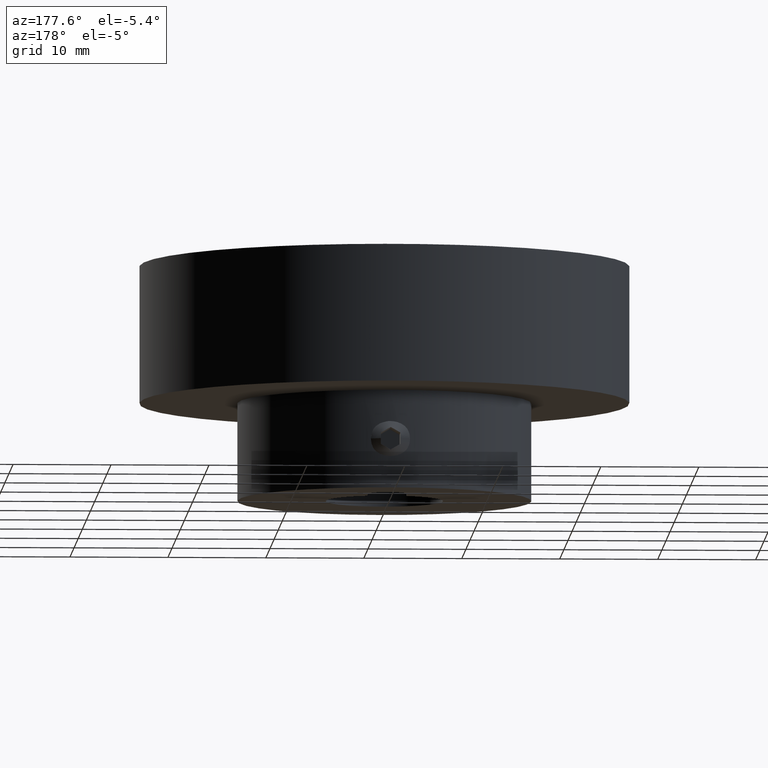
[diagram: clean part render]
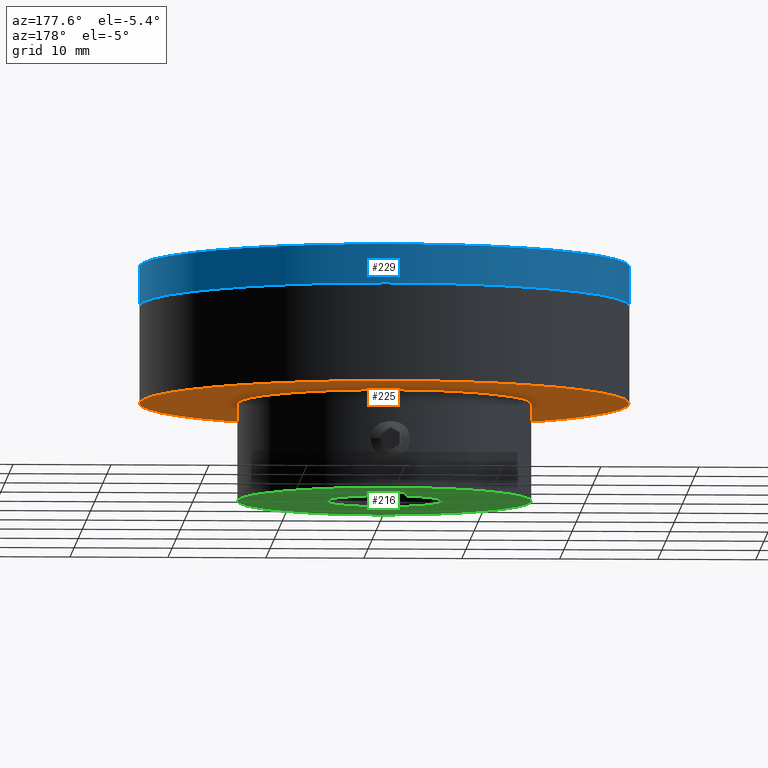
[diagram: same view with three faces highlighted in distinct colors, each labeled with its STEP entity id]
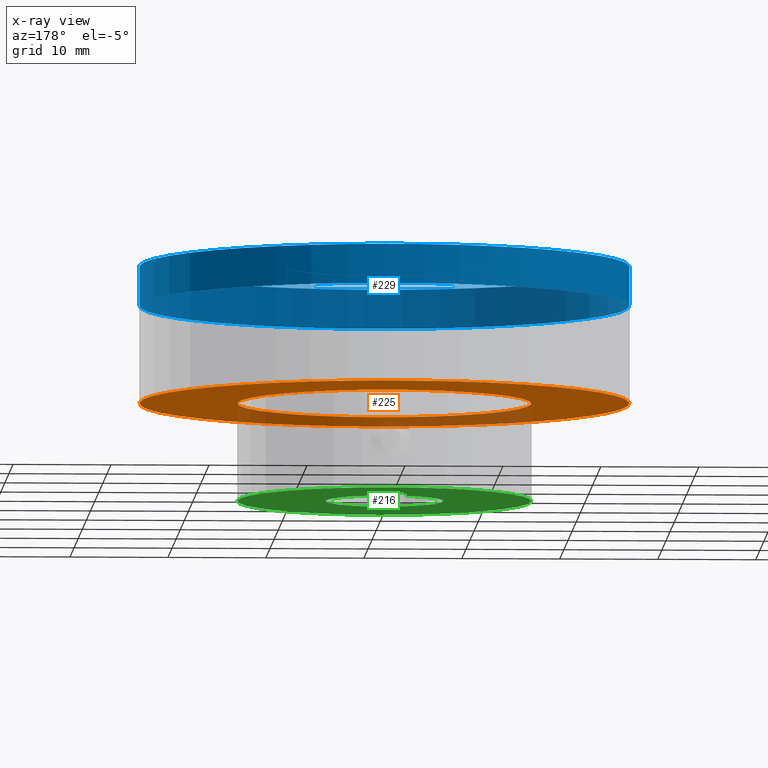
[diagram: x-ray of the same camera — body ghosted, the three highlighted faces saturated]
A machine part, auxiliary view with three faces highlighted in distinct colors.
The next image is the same camera in x-ray (body ghosted, the three faces saturated) — at least one of them is partly hidden behind the body in this view.
Their STEP definitions:

[orange] entity #225 — the highlighted planar face has unit normal (0, 0, -1).
#225 = ADVANCED_FACE( '', ( #272, #273 ), #274, .T. );
#272 = FACE_BOUND( '', #344, .T. );
#273 = FACE_OUTER_BOUND( '', #345, .T. );
#274 = PLANE( '', #346 );
#344 = EDGE_LOOP( '', ( #449 ) );
#345 = EDGE_LOOP( '', ( #450 ) );
#346 = AXIS2_PLACEMENT_3D( '', #451, #452, #453 );
#449 = ORIENTED_EDGE( '', *, *, #581, .T. );
#450 = ORIENTED_EDGE( '', *, *, #568, .F. );
#451 = CARTESIAN_POINT( '', ( 0.000000000000000, 0.000000000000000, -24.0000000000000 ) );
#452 = DIRECTION( '', ( 0.000000000000000, 0.000000000000000, -1.00000000000000 ) );
#453 = DIRECTION( '', ( 1.00000000000000, 0.000000000000000, 0.000000000000000 ) );
#568 = EDGE_CURVE( '', #619, #619, #620, .T. );
#581 = EDGE_CURVE( '', #641, #641, #642, .T. );
#619 = VERTEX_POINT( '', #701 );
#620 = CIRCLE( '', #702, 25.0000000000000 );
#641 = VERTEX_POINT( '', #835 );
#642 = CIRCLE( '', #836, 15.0000000000000 );
#701 = CARTESIAN_POINT( '', ( 25.0000000000000, 0.000000000000000, -24.0000000000000 ) );
#702 = AXIS2_PLACEMENT_3D( '', #936, #937, #938 );
#835 = CARTESIAN_POINT( '', ( 15.0000000000000, 0.000000000000000, -24.0000000000000 ) );
#836 = AXIS2_PLACEMENT_3D( '', #957, #958, #959 );
#936 = CARTESIAN_POINT( '', ( 0.000000000000000, 0.000000000000000, -24.0000000000000 ) );
#937 = DIRECTION( '', ( 0.000000000000000, -0.000000000000000, 1.00000000000000 ) );
#938 = DIRECTION( '', ( 1.00000000000000, 0.000000000000000, 0.000000000000000 ) );
#957 = CARTESIAN_POINT( '', ( 0.000000000000000, 0.000000000000000, -24.0000000000000 ) );
#958 = DIRECTION( '', ( 0.000000000000000, -0.000000000000000, 1.00000000000000 ) );
#959 = DIRECTION( '', ( 1.00000000000000, 0.000000000000000, 0.000000000000000 ) );

[blue] entity #229 — the highlighted cylindrical surface (bore or boss wall) has radius 25 mm, axis along (-0, 0, -1).
#229 = ADVANCED_FACE( '', ( #284, #285 ), #286, .T. );
#284 = FACE_OUTER_BOUND( '', #356, .T. );
#285 = FACE_OUTER_BOUND( '', #357, .T. );
#286 = CYLINDRICAL_SURFACE( '', #358, 25.0000000000000 );
#356 = EDGE_LOOP( '', ( #472 ) );
#357 = EDGE_LOOP( '', ( #473 ) );
#358 = AXIS2_PLACEMENT_3D( '', #474, #475, #476 );
#472 = ORIENTED_EDGE( '', *, *, #583, .T. );
#473 = ORIENTED_EDGE( '', *, *, #585, .F. );
#474 = CARTESIAN_POINT( '', ( 0.000000000000000, 0.000000000000000, -14.0000000000000 ) );
#475 = DIRECTION( '', ( -0.000000000000000, 0.000000000000000, -1.00000000000000 ) );
#476 = DIRECTION( '', ( -1.00000000000000, 0.000000000000000, 0.000000000000000 ) );
#583 = EDGE_CURVE( '', #645, #645, #646, .T. );
#585 = EDGE_CURVE( '', #649, #649, #650, .T. );
#645 = VERTEX_POINT( '', #839 );
#646 = CIRCLE( '', #840, 25.0000000000000 );
#649 = VERTEX_POINT( '', #843 );
#650 = CIRCLE( '', #844, 25.0000000000000 );
#839 = CARTESIAN_POINT( '', ( 25.0000000000000, 0.000000000000000, -14.0000000000000 ) );
#840 = AXIS2_PLACEMENT_3D( '', #963, #964, #965 );
#843 = CARTESIAN_POINT( '', ( 25.0000000000000, 0.000000000000000, -10.0000000000000 ) );
#844 = AXIS2_PLACEMENT_3D( '', #969, #970, #971 );
#963 = CARTESIAN_POINT( '', ( 0.000000000000000, 0.000000000000000, -14.0000000000000 ) );
#964 = DIRECTION( '', ( 0.000000000000000, -0.000000000000000, 1.00000000000000 ) );
#965 = DIRECTION( '', ( 1.00000000000000, 0.000000000000000, 0.000000000000000 ) );
#969 = CARTESIAN_POINT( '', ( 0.000000000000000, 0.000000000000000, -10.0000000000000 ) );
#970 = DIRECTION( '', ( 0.000000000000000, -0.000000000000000, 1.00000000000000 ) );
#971 = DIRECTION( '', ( 1.00000000000000, 0.000000000000000, 0.000000000000000 ) );

[green] entity #216 — the highlighted planar face has unit normal (0, 0, -1).
#216 = ADVANCED_FACE( '', ( #247, #248 ), #249, .T. );
#247 = FACE_OUTER_BOUND( '', #319, .T. );
#248 = FACE_BOUND( '', #320, .T. );
#249 = PLANE( '', #321 );
#319 = EDGE_LOOP( '', ( #391 ) );
#320 = EDGE_LOOP( '', ( #392, #393, #394, #395 ) );
#321 = AXIS2_PLACEMENT_3D( '', #396, #397, #398 );
#391 = ORIENTED_EDGE( '', *, *, #563, .F. );
#392 = ORIENTED_EDGE( '', *, *, #564, .F. );
#393 = ORIENTED_EDGE( '', *, *, #565, .F. );
#394 = ORIENTED_EDGE( '', *, *, #566, .F. );
#395 = ORIENTED_EDGE( '', *, *, #567, .F. );
#396 = CARTESIAN_POINT( '', ( 0.000000000000000, 0.000000000000000, -34.0000000000000 ) );
#397 = DIRECTION( '', ( 0.000000000000000, 0.000000000000000, -1.00000000000000 ) );
#398 = DIRECTION( '', ( 1.00000000000000, 0.000000000000000, 0.000000000000000 ) );
#563 = EDGE_CURVE( '', #609, #609, #610, .T. );
#564 = EDGE_CURVE( '', #611, #612, #613, .T. );
#565 = EDGE_CURVE( '', #614, #611, #615, .F. );
#566 = EDGE_CURVE( '', #616, #614, #617, .T. );
#567 = EDGE_CURVE( '', #612, #616, #618, .F. );
#609 = VERTEX_POINT( '', #689 );
#610 = CIRCLE( '', #690, 15.0000000000000 );
#611 = VERTEX_POINT( '', #691 );
#612 = VERTEX_POINT( '', #692 );
#613 = LINE( '', #693, #694 );
#614 = VERTEX_POINT( '', #695 );
#615 = CIRCLE( '', #696, 6.00000000000000 );
#616 = VERTEX_POINT( '', #697 );
#617 = LINE( '', #698, #699 );
#618 = CIRCLE( '', #700, 2.00000000000000 );
#689 = CARTESIAN_POINT( '', ( 15.0000000000000, 0.000000000000000, -34.0000000000000 ) );
#690 = AXIS2_PLACEMENT_3D( '', #925, #926, #927 );
#691 = CARTESIAN_POINT( '', ( -2.00000000000000, 5.65685424949238, -34.0000000000000 ) );
#692 = CARTESIAN_POINT( '', ( -2.00000000000000, 7.80000000000001, -34.0000000000000 ) );
#693 = CARTESIAN_POINT( '', ( -2.00000000000000, 1.22460635382238E-016, -34.0000000000000 ) );
#694 = VECTOR( '', #928, 1000.00000000000 );
#695 = CARTESIAN_POINT( '', ( 2.00000000000000, 5.65685424949238, -34.0000000000000 ) );
#696 = AXIS2_PLACEMENT_3D( '', #929, #930, #931 );
#697 = CARTESIAN_POINT( '', ( 2.00000000000000, 7.80000000000000, -34.0000000000000 ) );
#698 = CARTESIAN_POINT( '', ( 2.00000000000000, -1.22460635382238E-016, -34.0000000000000 ) );
#699 = VECTOR( '', #932, 1000.00000000000 );
#700 = AXIS2_PLACEMENT_3D( '', #933, #934, #935 );
#925 = CARTESIAN_POINT( '', ( 0.000000000000000, 0.000000000000000, -34.0000000000000 ) );
#926 = DIRECTION( '', ( 0.000000000000000, -0.000000000000000, 1.00000000000000 ) );
#927 = DIRECTION( '', ( 1.00000000000000, 0.000000000000000, 0.000000000000000 ) );
#928 = DIRECTION( '', ( 6.12303176911189E-017, 1.00000000000000, 0.000000000000000 ) );
#929 = CARTESIAN_POINT( '', ( 0.000000000000000, 0.000000000000000, -34.0000000000000 ) );
#930 = DIRECTION( '', ( 0.000000000000000, -0.000000000000000, 1.00000000000000 ) );
#931 = DIRECTION( '', ( 1.00000000000000, 0.000000000000000, 0.000000000000000 ) );
#932 = DIRECTION( '', ( -6.12303176911189E-017, -1.00000000000000, -0.000000000000000 ) );
#933 = CARTESIAN_POINT( '', ( 0.000000000000000, 7.80000000000000, -34.0000000000000 ) );
#934 = DIRECTION( '', ( 0.000000000000000, -0.000000000000000, 1.00000000000000 ) );
#935 = DIRECTION( '', ( 1.00000000000000, 0.000000000000000, 0.000000000000000 ) );